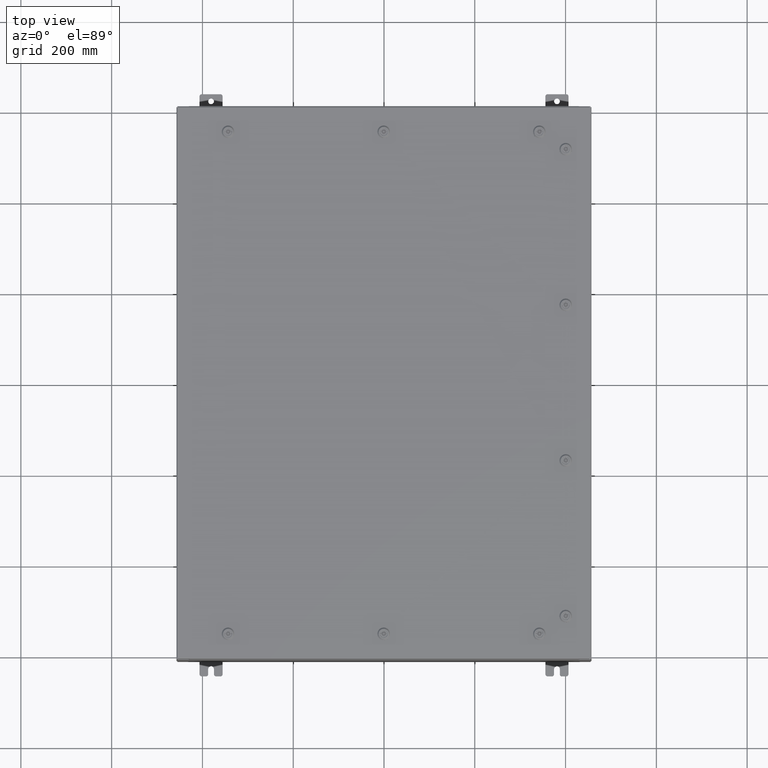
[diagram: clean part render]
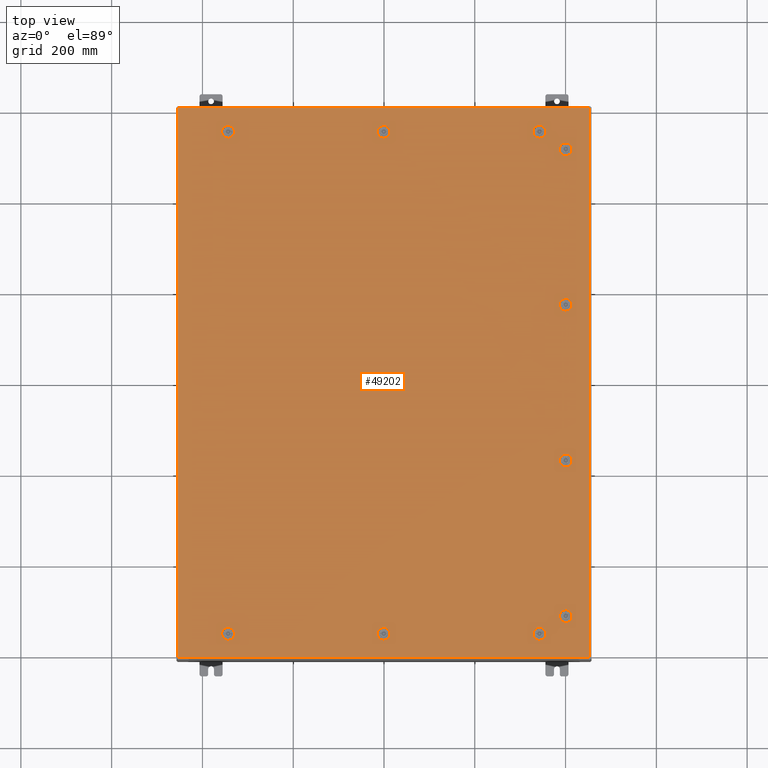
[diagram: same view with one face highlighted and labeled with its STEP entity id]
A machine part, top view. The second image highlights one B-rep face of the part: STEP entity #49202.
In plain terms, the highlighted planar face has unit normal (0, 0, -1).
Its self-contained STEP definition (entity closure, byte-faithful):
#139 = CIRCLE ( 'NONE', #52621, 0.4424999999999983400 ) ;
#185 = AXIS2_PLACEMENT_3D ( 'NONE', #39901, #8101, #45208 ) ;
#509 = DIRECTION ( 'NONE',  ( 1.000000000000000000, 0.0000000000000000000, 0.0000000000000000000 ) ) ;
#716 = CIRCLE ( 'NONE', #51055, 0.4424999999999969000 ) ;
#941 = CARTESIAN_POINT ( 'NONE',  ( 13.69945237526787100, -21.39280000000001200, 0.0000000000000000000 ) ) ;
#1035 = CARTESIAN_POINT ( 'NONE',  ( -17.84979999999999800, -23.84980000000000200, 1.946441695485787500E-015 ) ) ;
#1218 = VERTEX_POINT ( 'NONE', #61041 ) ;
#1228 = DIRECTION ( 'NONE',  ( -6.982962677686266700E-015, -6.982962677686266700E-015, 1.000000000000000000 ) ) ;
#1239 = DIRECTION ( 'NONE',  ( 0.0000000000000000000, 0.0000000000000000000, 1.000000000000000000 ) ) ;
#1246 = VERTEX_POINT ( 'NONE', #8876 ) ;
#1655 = CARTESIAN_POINT ( 'NONE',  ( 13.30054762473210400, -21.39280000000001200, -1.564962406004356200E-013 ) ) ;
#1794 = CARTESIAN_POINT ( 'NONE',  ( -13.49999999999998600, 21.78780000000000400, 0.0000000000000000000 ) ) ;
#1913 = CIRCLE ( 'NONE', #35100, 0.4424999999999983400 ) ;
#1946 = CARTESIAN_POINT ( 'NONE',  ( 15.39280000000002200, -20.05054762473213300, 0.0000000000000000000 ) ) ;
#1964 = ORIENTED_EDGE ( 'NONE', *, *, #7868, .F. ) ;
#2073 = VERTEX_POINT ( 'NONE', #22288 ) ;
#2154 = DIRECTION ( 'NONE',  ( -0.0000000000000000000, -6.982962677686266700E-015, 1.000000000000000000 ) ) ;
#2498 = VERTEX_POINT ( 'NONE', #26019 ) ;
#2573 = FACE_BOUND ( 'NONE', #8135, .T. ) ;
#2579 = CIRCLE ( 'NONE', #4537, 0.4424999999999961700 ) ;
#2624 = VERTEX_POINT ( 'NONE', #3149 ) ;
#2708 = CARTESIAN_POINT ( 'NONE',  ( -17.84979999999998100, 23.84980000000000900, -1.297627796990525000E-015 ) ) ;
#2808 = DIRECTION ( 'NONE',  ( -6.982962677686266700E-015, -6.982962677686266700E-015, 1.000000000000000000 ) ) ;
#3149 = CARTESIAN_POINT ( 'NONE',  ( 16.18280000000001800, -20.05054762473213300, -1.400122257306754800E-013 ) ) ;
#4153 = CARTESIAN_POINT ( 'NONE',  ( 15.39280000000001400, 6.550547624732131700, 0.0000000000000000000 ) ) ;
#4272 = FACE_BOUND ( 'NONE', #63169, .T. ) ;
#4416 = DIRECTION ( 'NONE',  ( 0.0000000000000000000, 0.0000000000000000000, 1.000000000000000000 ) ) ;
#4499 = VECTOR ( 'NONE', #30217, 39.37007874015748100 ) ;
#4537 = AXIS2_PLACEMENT_3D ( 'NONE', #46568, #27211, #34648 ) ;
#4672 = AXIS2_PLACEMENT_3D ( 'NONE', #11074, #48193, #16403 ) ;
#4700 = EDGE_LOOP ( 'NONE', ( #47849, #30620, #43129, #65887 ) ) ;
#4957 = AXIS2_PLACEMENT_3D ( 'NONE', #11133, #48261, #16477 ) ;
#5303 = CARTESIAN_POINT ( 'NONE',  ( 16.18280000000000700, -6.550547624732131700, -4.574222958191090100E-014 ) ) ;
#5309 = VERTEX_POINT ( 'NONE', #40691 ) ;
#5504 = EDGE_LOOP ( 'NONE', ( #7027, #1964, #68101, #35937, #25734 ) ) ;
#5579 = CARTESIAN_POINT ( 'NONE',  ( -0.1994523752678689600, -21.39280000000001200, -2.493734682567286400E-013 ) ) ;
#5650 = EDGE_CURVE ( 'NONE', #50179, #11201, #2579, .T. ) ;
#5758 = ORIENTED_EDGE ( 'NONE', *, *, #28889, .F. ) ;
#5836 = DIRECTION ( 'NONE',  ( 0.0000000000000000000, 0.0000000000000000000, 1.000000000000000000 ) ) ;
#6274 = AXIS2_PLACEMENT_3D ( 'NONE', #37616, #5836, #42937 ) ;
#6297 = CIRCLE ( 'NONE', #53654, 0.4424999999999983400 ) ;
#6640 = ORIENTED_EDGE ( 'NONE', *, *, #12326, .F. ) ;
#6666 = EDGE_CURVE ( 'NONE', #18786, #41251, #139, .T. ) ;
#6931 = EDGE_CURVE ( 'NONE', #43496, #18786, #25022, .T. ) ;
#7027 = ORIENTED_EDGE ( 'NONE', *, *, #65201, .F. ) ;
#7089 = EDGE_LOOP ( 'NONE', ( #48249, #60958, #58047, #24328 ) ) ;
#7113 = DIRECTION ( 'NONE',  ( 1.000000000000000000, 0.0000000000000000000, 0.0000000000000000000 ) ) ;
#7690 = CARTESIAN_POINT ( 'NONE',  ( 16.18280000000000400, -6.949452375267900300, -4.852776656685392100E-014 ) ) ;
#7786 = DIRECTION ( 'NONE',  ( 5.478697338139280000E-015, 1.000000000000000000, 6.982962677686382700E-015 ) ) ;
#7868 = EDGE_CURVE ( 'NONE', #11201, #53735, #37446, .T. ) ;
#7936 = VECTOR ( 'NONE', #41006, 39.37007874015748100 ) ;
#8101 = DIRECTION ( 'NONE',  ( -6.982962677686266700E-015, -6.982962677686266700E-015, 1.000000000000000000 ) ) ;
#8135 = EDGE_LOOP ( 'NONE', ( #54027, #33619, #61500, #64724, #50000 ) ) ;
#8223 = CIRCLE ( 'NONE', #28421, 0.4424999999999961700 ) ;
#8261 = DIRECTION ( 'NONE',  ( -0.0000000000000000000, -6.982962677686266700E-015, 1.000000000000000000 ) ) ;
#8296 = CARTESIAN_POINT ( 'NONE',  ( 15.39280000000002800, -20.44945237526790300, -1.427977627156185600E-013 ) ) ;
#8519 = DIRECTION ( 'NONE',  ( 1.095739467627844000E-014, -1.000000000000000000, -6.982962677686384300E-015 ) ) ;
#8691 = CARTESIAN_POINT ( 'NONE',  ( 13.30054762473209400, 22.18280000000000000, -9.287722765629296100E-014 ) ) ;
#8780 = EDGE_CURVE ( 'NONE', #5309, #59010, #67264, .T. ) ;
#8876 = CARTESIAN_POINT ( 'NONE',  ( 15.39280000000001900, 20.05054762473213300, 0.0000000000000000000 ) ) ;
#8884 = EDGE_CURVE ( 'NONE', #38419, #2624, #49807, .T. ) ;
#8890 = AXIS2_PLACEMENT_3D ( 'NONE', #64110, #32299, #509 ) ;
#9441 = CIRCLE ( 'NONE', #45059, 0.4424999999999983400 ) ;
#9752 = LINE ( 'NONE', #33824, #36327 ) ;
#10256 = DIRECTION ( 'NONE',  ( -5.478697338139280000E-015, 1.000000000000000000, -0.0000000000000000000 ) ) ;
#10920 = EDGE_CURVE ( 'NONE', #59010, #67471, #52139, .T. ) ;
#11010 = VERTEX_POINT ( 'NONE', #63127 ) ;
#11034 = EDGE_CURVE ( 'NONE', #13463, #50179, #22250, .T. ) ;
#11074 = CARTESIAN_POINT ( 'NONE',  ( 13.49999999999998600, 21.78780000000000400, -9.426999614876453700E-014 ) ) ;
#11085 = VERTEX_POINT ( 'NONE', #26211 ) ;
#11133 = CARTESIAN_POINT ( 'NONE',  ( 1.529834876451987200E-014, -21.78780000000000400, -2.521317385144146900E-013 ) ) ;
#11201 = VERTEX_POINT ( 'NONE', #38490 ) ;
#11455 = EDGE_CURVE ( 'NONE', #40536, #59069, #49607, .T. ) ;
#11553 = DIRECTION ( 'NONE',  ( -1.000000000000000000, 0.0000000000000000000, -0.0000000000000000000 ) ) ;
#11755 = EDGE_LOOP ( 'NONE', ( #51738, #58623, #53646, #54742 ) ) ;
#12128 = AXIS2_PLACEMENT_3D ( 'NONE', #32652, #43334, #11553 ) ;
#12234 = AXIS2_PLACEMENT_3D ( 'NONE', #33017, #1239, #38372 ) ;
#12326 = EDGE_CURVE ( 'NONE', #41998, #68625, #19651, .T. ) ;
#12386 = CARTESIAN_POINT ( 'NONE',  ( 1.529834876451987200E-014, -21.78780000000000400, -2.521317385144146900E-013 ) ) ;
#12405 = CIRCLE ( 'NONE', #12234, 0.4424999999999961700 ) ;
#12496 = CIRCLE ( 'NONE', #61349, 0.4424999999999961700 ) ;
#12734 = VECTOR ( 'NONE', #10256, 39.37007874015748100 ) ;
#12749 = DIRECTION ( 'NONE',  ( 1.000000000000000000, -0.0000000000000000000, -0.0000000000000000000 ) ) ;
#12814 = FACE_OUTER_BOUND ( 'NONE', #7089, .T. ) ;
#12834 = LINE ( 'NONE', #26647, #67679 ) ;
#12858 = VERTEX_POINT ( 'NONE', #1035 ) ;
#12917 = DIRECTION ( 'NONE',  ( 1.095739467627835000E-014, -1.000000000000000000, -6.982962677686269100E-015 ) ) ;
#13052 = DIRECTION ( 'NONE',  ( 1.000000000000000000, 1.095739467627832000E-014, 7.785697190085955000E-029 ) ) ;
#13128 = DIRECTION ( 'NONE',  ( 0.0000000000000000000, 1.000000000000000000, 0.0000000000000000000 ) ) ;
#13463 = VERTEX_POINT ( 'NONE', #36931 ) ;
#13817 = EDGE_CURVE ( 'NONE', #50801, #49105, #6297, .T. ) ;
#13846 = CIRCLE ( 'NONE', #48774, 0.4424999999999972800 ) ;
#14117 = EDGE_CURVE ( 'NONE', #1218, #1246, #27840, .T. ) ;
#14322 = CARTESIAN_POINT ( 'NONE',  ( 16.18280000000001500, 20.05054762473213300, 0.0000000000000000000 ) ) ;
#14321 = DIRECTION ( 'NONE',  ( -0.0000000000000000000, -6.982962677686266700E-015, 1.000000000000000000 ) ) ;
#14461 = EDGE_CURVE ( 'NONE', #2498, #17411, #12834, .T. ) ;
#14643 = EDGE_CURVE ( 'NONE', #59473, #60769, #21986, .T. ) ;
#15004 = ORIENTED_EDGE ( 'NONE', *, *, #6931, .F. ) ;
#15054 = VERTEX_POINT ( 'NONE', #45804 ) ;
#15513 = LINE ( 'NONE', #7690, #56177 ) ;
#15707 = EDGE_CURVE ( 'NONE', #19459, #33710, #18591, .T. ) ;
#16350 = VERTEX_POINT ( 'NONE', #8691 ) ;
#16362 = CARTESIAN_POINT ( 'NONE',  ( 13.49999999999998600, 21.78780000000000400, -9.426999614876453700E-014 ) ) ;
#16403 = DIRECTION ( 'NONE',  ( -1.000000000000000000, 0.0000000000000000000, 6.982962677686269100E-015 ) ) ;
#16477 = DIRECTION ( 'NONE',  ( 0.0000000000000000000, 1.000000000000000000, 6.982962677686270700E-015 ) ) ;
#16511 = VECTOR ( 'NONE', #13128, 39.37007874015748100 ) ;
#16706 = FACE_BOUND ( 'NONE', #50046, .T. ) ;
#16873 = CARTESIAN_POINT ( 'NONE',  ( 15.78780000000000800, -6.750000000000014200, -4.713499807438240100E-014 ) ) ;
#17411 = VERTEX_POINT ( 'NONE', #51178 ) ;
#17736 = DIRECTION ( 'NONE',  ( 0.0000000000000000000, 1.000000000000000000, 6.982962677686270700E-015 ) ) ;
#17823 = CIRCLE ( 'NONE', #8890, 0.4424999999999983400 ) ;
#17833 = CARTESIAN_POINT ( 'NONE',  ( 0.4425000000000125500, 21.78780000000000400, 0.0000000000000000000 ) ) ;
#18158 = EDGE_CURVE ( 'NONE', #1246, #33358, #8223, .T. ) ;
#18294 = CARTESIAN_POINT ( 'NONE',  ( 15.39280000000001500, -6.949452375267904700, -4.852776656685395200E-014 ) ) ;
#18360 = FACE_BOUND ( 'NONE', #11755, .T. ) ;
#18591 = LINE ( 'NONE', #35544, #4499 ) ;
#18675 = CARTESIAN_POINT ( 'NONE',  ( 13.69945237526786900, -22.18280000000000400, -1.592272441308647100E-013 ) ) ;
#18786 = VERTEX_POINT ( 'NONE', #18675 ) ;
#19459 = VERTEX_POINT ( 'NONE', #66780 ) ;
#19651 = LINE ( 'NONE', #1655, #62008 ) ;
#19750 = DIRECTION ( 'NONE',  ( 1.000000000000000000, -1.095739467627832000E-014, 6.982962677686152300E-015 ) ) ;
#19815 = ORIENTED_EDGE ( 'NONE', *, *, #46277, .F. ) ;
#20034 = FACE_BOUND ( 'NONE', #4700, .T. ) ;
#20179 = DIRECTION ( 'NONE',  ( -1.000000000000000000, 0.0000000000000000000, 7.785697190086082800E-029 ) ) ;
#20228 = CARTESIAN_POINT ( 'NONE',  ( 15.39280000000002800, -20.44945237526790300, -1.427977627156185100E-013 ) ) ;
#20358 = VECTOR ( 'NONE', #8519, 39.37007874015748100 ) ;
#20573 = CARTESIAN_POINT ( 'NONE',  ( -13.69945237526786900, -22.18280000000000700, 0.0000000000000000000 ) ) ;
#20661 = VERTEX_POINT ( 'NONE', #33928 ) ;
#20853 = CIRCLE ( 'NONE', #4957, 0.4424999999999983400 ) ;
#21004 = DIRECTION ( 'NONE',  ( 1.000000000000000000, -0.0000000000000000000, -0.0000000000000000000 ) ) ;
#21072 = CARTESIAN_POINT ( 'NONE',  ( 1.529834876451987200E-014, 21.78780000000000400, 0.0000000000000000000 ) ) ;
#21134 = ORIENTED_EDGE ( 'NONE', *, *, #24007, .F. ) ;
#21226 = CARTESIAN_POINT ( 'NONE',  ( 1.529834876451987200E-014, 21.78780000000000400, 0.0000000000000000000 ) ) ;
#21661 = ORIENTED_EDGE ( 'NONE', *, *, #57376, .F. ) ;
#21697 = DIRECTION ( 'NONE',  ( -1.000000000000000000, 0.0000000000000000000, 6.982962677686270700E-015 ) ) ;
#21720 = VECTOR ( 'NONE', #19750, 39.37007874015748100 ) ;
#21986 = LINE ( 'NONE', #59352, #36103 ) ;
#22028 = LINE ( 'NONE', #8296, #20358 ) ;
#22195 = DIRECTION ( 'NONE',  ( 0.0000000000000000000, 1.000000000000000000, 6.982962677686269100E-015 ) ) ;
#22207 = DIRECTION ( 'NONE',  ( -1.000000000000000000, 0.0000000000000000000, 7.785697190086061500E-029 ) ) ;
#22250 = LINE ( 'NONE', #52661, #48825 ) ;
#22251 = EDGE_LOOP ( 'NONE', ( #5758, #41558, #59573, #52548 ) ) ;
#22288 = CARTESIAN_POINT ( 'NONE',  ( -13.30054762473210400, -21.39280000000001500, -2.493734682567286900E-013 ) ) ;
#22397 = CARTESIAN_POINT ( 'NONE',  ( -13.49999999999998600, -21.78780000000000800, -2.521317385144146900E-013 ) ) ;
#22621 = EDGE_CURVE ( 'NONE', #63371, #19459, #51936, .T. ) ;
#23334 = AXIS2_PLACEMENT_3D ( 'NONE', #25582, #62734, #30918 ) ;
#23570 = EDGE_LOOP ( 'NONE', ( #35039, #21661, #56363, #48434, #54918 ) ) ;
#23889 = VECTOR ( 'NONE', #46396, 39.37007874015748100 ) ;
#24007 = EDGE_CURVE ( 'NONE', #51397, #50801, #38559, .T. ) ;
#24049 = DIRECTION ( 'NONE',  ( 0.0000000000000000000, -1.000000000000000000, 0.0000000000000000000 ) ) ;
#24113 = EDGE_CURVE ( 'NONE', #51819, #45655, #49333, .T. ) ;
#24137 = ORIENTED_EDGE ( 'NONE', *, *, #28105, .F. ) ;
#24328 = ORIENTED_EDGE ( 'NONE', *, *, #25350, .T. ) ;
#24414 = DIRECTION ( 'NONE',  ( 0.0000000000000000000, 0.0000000000000000000, 1.000000000000000000 ) ) ;
#24534 = EDGE_CURVE ( 'NONE', #2624, #46488, #9441, .T. ) ;
#24900 = LINE ( 'NONE', #18294, #65598 ) ;
#25022 = LINE ( 'NONE', #56851, #21720 ) ;
#25273 = CARTESIAN_POINT ( 'NONE',  ( 16.18280000000000400, -6.949452375267900300, -4.852776656685392100E-014 ) ) ;
#25350 = EDGE_CURVE ( 'NONE', #45655, #12858, #53400, .T. ) ;
#25556 = EDGE_CURVE ( 'NONE', #68029, #5309, #59210, .T. ) ;
#25582 = CARTESIAN_POINT ( 'NONE',  ( -13.49999999999998600, 21.78780000000000400, 0.0000000000000000000 ) ) ;
#25734 = ORIENTED_EDGE ( 'NONE', *, *, #37359, .F. ) ;
#26019 = CARTESIAN_POINT ( 'NONE',  ( -0.1994523752678689600, 21.39280000000001200, 0.0000000000000000000 ) ) ;
#26211 = CARTESIAN_POINT ( 'NONE',  ( -13.69945237526787100, -21.39280000000001500, -2.493734682567286400E-013 ) ) ;
#26413 = DIRECTION ( 'NONE',  ( 1.000000000000000000, 0.0000000000000000000, 0.0000000000000000000 ) ) ;
#26569 = DIRECTION ( 'NONE',  ( 1.000000000000000000, 0.0000000000000000000, 0.0000000000000000000 ) ) ;
#26647 = CARTESIAN_POINT ( 'NONE',  ( 0.1994523752678995500, 21.39280000000001200, 0.0000000000000000000 ) ) ;
#27081 = VECTOR ( 'NONE', #21004, 39.37007874015748100 ) ;
#27211 = DIRECTION ( 'NONE',  ( 6.982962677686266700E-015, -0.0000000000000000000, 1.000000000000000000 ) ) ;
#27329 = PLANE ( 'NONE',  #12128 ) ;
#27399 = CARTESIAN_POINT ( 'NONE',  ( -13.49999999999998600, -21.78780000000000800, -2.521317385144146900E-013 ) ) ;
#27405 = CARTESIAN_POINT ( 'NONE',  ( 0.1994523752679054600, -22.18280000000000000, -2.548900087721007400E-013 ) ) ;
#27599 = DIRECTION ( 'NONE',  ( 1.000000000000000000, 1.095739467627836100E-014, 7.785697190085984100E-029 ) ) ;
#27695 = AXIS2_PLACEMENT_3D ( 'NONE', #12386, #49514, #17736 ) ;
#27732 = DIRECTION ( 'NONE',  ( 0.0000000000000000000, 1.000000000000000000, 6.982962677686270700E-015 ) ) ;
#27743 = CARTESIAN_POINT ( 'NONE',  ( 13.69945237526786900, 21.39280000000001200, -9.566276464123603800E-014 ) ) ;
#27840 = LINE ( 'NONE', #66352, #52750 ) ;
#27929 = CARTESIAN_POINT ( 'NONE',  ( 15.78780000000001800, -20.25000000000001400, -1.414049942231469700E-013 ) ) ;
#28105 = EDGE_CURVE ( 'NONE', #68625, #43496, #60657, .T. ) ;
#28421 = AXIS2_PLACEMENT_3D ( 'NONE', #61710, #29906, #67041 ) ;
#28830 = VERTEX_POINT ( 'NONE', #44482 ) ;
#28889 = EDGE_CURVE ( 'NONE', #59069, #34531, #24900, .T. ) ;
#29537 = AXIS2_PLACEMENT_3D ( 'NONE', #16362, #53483, #21697 ) ;
#29627 = ORIENTED_EDGE ( 'NONE', *, *, #43272, .F. ) ;
#29906 = DIRECTION ( 'NONE',  ( 0.0000000000000000000, 0.0000000000000000000, 1.000000000000000000 ) ) ;
#29970 = ORIENTED_EDGE ( 'NONE', *, *, #52198, .F. ) ;
#30029 = EDGE_CURVE ( 'NONE', #44879, #20661, #53053, .T. ) ;
#30129 = DIRECTION ( 'NONE',  ( -0.0000000000000000000, -6.982962677686266700E-015, 1.000000000000000000 ) ) ;
#30217 = DIRECTION ( 'NONE',  ( -1.000000000000000000, 1.095739467627836100E-014, 0.0000000000000000000 ) ) ;
#30311 = EDGE_CURVE ( 'NONE', #39462, #51819, #32279, .T. ) ;
#30332 = DIRECTION ( 'NONE',  ( -1.095739467627835000E-014, -1.000000000000000000, 0.0000000000000000000 ) ) ;
#30347 = AXIS2_PLACEMENT_3D ( 'NONE', #56192, #24414, #61553 ) ;
#30479 = EDGE_LOOP ( 'NONE', ( #19815, #37371, #62501, #42418 ) ) ;
#30620 = ORIENTED_EDGE ( 'NONE', *, *, #45423, .F. ) ;
#30819 = FACE_BOUND ( 'NONE', #5504, .T. ) ;
#30918 = DIRECTION ( 'NONE',  ( 1.000000000000000000, 0.0000000000000000000, 0.0000000000000000000 ) ) ;
#32171 = VERTEX_POINT ( 'NONE', #48402 ) ;
#32279 = LINE ( 'NONE', #50264, #16511 ) ;
#32299 = DIRECTION ( 'NONE',  ( 0.0000000000000000000, 0.0000000000000000000, 1.000000000000000000 ) ) ;
#32613 = VECTOR ( 'NONE', #12749, 39.37007874015748100 ) ;
#32652 = CARTESIAN_POINT ( 'NONE',  ( 0.0000000000000000000, 0.0000000000000000000, 0.0000000000000000000 ) ) ;
#32742 = DIRECTION ( 'NONE',  ( 0.0000000000000000000, 1.000000000000000000, 6.982962677686270700E-015 ) ) ;
#32999 = CARTESIAN_POINT ( 'NONE',  ( 13.49999999999998600, -21.78780000000000400, -1.578617423656501800E-013 ) ) ;
#33017 = CARTESIAN_POINT ( 'NONE',  ( -13.49999999999998600, 21.78780000000000400, 0.0000000000000000000 ) ) ;
#33211 = DIRECTION ( 'NONE',  ( -1.000000000000000000, -0.0000000000000000000, -6.982962677686265900E-015 ) ) ;
#33261 = DIRECTION ( 'NONE',  ( 0.0000000000000000000, 1.000000000000000000, 6.982962677686235200E-015 ) ) ;
#33358 = VERTEX_POINT ( 'NONE', #14322 ) ;
#33619 = ORIENTED_EDGE ( 'NONE', *, *, #54801, .F. ) ;
#33710 = VERTEX_POINT ( 'NONE', #51610 ) ;
#33824 = CARTESIAN_POINT ( 'NONE',  ( 0.1994523752679067700, -22.18280000000000000, -2.548900087721007400E-013 ) ) ;
#33926 = CARTESIAN_POINT ( 'NONE',  ( 15.78780000000001800, -20.25000000000001400, -1.414049942231469700E-013 ) ) ;
#33928 = CARTESIAN_POINT ( 'NONE',  ( 16.18280000000000700, 6.949452375267900300, 0.0000000000000000000 ) ) ;
#34136 = FACE_BOUND ( 'NONE', #30479, .T. ) ;
#34265 = LINE ( 'NONE', #60335, #32613 ) ;
#34286 = EDGE_CURVE ( 'NONE', #60260, #40536, #15513, .T. ) ;
#34531 = VERTEX_POINT ( 'NONE', #62712 ) ;
#34535 = DIRECTION ( 'NONE',  ( -1.095739467627844000E-014, -1.000000000000000000, 0.0000000000000000000 ) ) ;
#34574 = CARTESIAN_POINT ( 'NONE',  ( 13.49999999999998600, -21.78780000000000400, -1.578617423656501800E-013 ) ) ;
#34648 = DIRECTION ( 'NONE',  ( -1.000000000000000000, 0.0000000000000000000, 6.982962677686269100E-015 ) ) ;
#35039 = ORIENTED_EDGE ( 'NONE', *, *, #63382, .F. ) ;
#35100 = AXIS2_PLACEMENT_3D ( 'NONE', #61936, #30129, #67276 ) ;
#35544 = CARTESIAN_POINT ( 'NONE',  ( 0.1994523752679067700, 22.18280000000000000, 0.0000000000000000000 ) ) ;
#35937 = ORIENTED_EDGE ( 'NONE', *, *, #11034, .F. ) ;
#36103 = VECTOR ( 'NONE', #22207, 39.37007874015748100 ) ;
#36189 = CARTESIAN_POINT ( 'NONE',  ( 15.78780000000001500, 20.25000000000001400, 0.0000000000000000000 ) ) ;
#36267 = AXIS2_PLACEMENT_3D ( 'NONE', #46125, #14321, #51471 ) ;
#36316 = EDGE_CURVE ( 'NONE', #41251, #41998, #63852, .T. ) ;
#36327 = VECTOR ( 'NONE', #27599, 39.37007874015748100 ) ;
#36655 = DIRECTION ( 'NONE',  ( 1.000000000000000000, 0.0000000000000000000, -6.982962677686306200E-015 ) ) ;
#36896 = VECTOR ( 'NONE', #61342, 39.37007874015748100 ) ;
#36931 = CARTESIAN_POINT ( 'NONE',  ( 13.30054762473210200, 21.39280000000001200, -9.287722765629301200E-014 ) ) ;
#37359 = EDGE_CURVE ( 'NONE', #16350, #13463, #63060, .T. ) ;
#37371 = ORIENTED_EDGE ( 'NONE', *, *, #18158, .F. ) ;
#37446 = CIRCLE ( 'NONE', #4672, 0.4424999999999961700 ) ;
#37616 = CARTESIAN_POINT ( 'NONE',  ( 15.78780000000001000, 6.750000000000014200, 0.0000000000000000000 ) ) ;
#37859 = ORIENTED_EDGE ( 'NONE', *, *, #13817, .F. ) ;
#38265 = DIRECTION ( 'NONE',  ( -5.478697338139235000E-015, 1.000000000000000000, -0.0000000000000000000 ) ) ;
#38357 = DIRECTION ( 'NONE',  ( 1.000000000000000000, 0.0000000000000000000, 6.982962677686270700E-015 ) ) ;
#38372 = DIRECTION ( 'NONE',  ( 1.000000000000000000, 0.0000000000000000000, 0.0000000000000000000 ) ) ;
#38419 = VERTEX_POINT ( 'NONE', #39888 ) ;
#38490 = CARTESIAN_POINT ( 'NONE',  ( 13.94249999999998300, 21.78780000000000400, -9.735995713364067600E-014 ) ) ;
#38559 = LINE ( 'NONE', #44829, #40209 ) ;
#38566 = EDGE_CURVE ( 'NONE', #41519, #15054, #51300, .T. ) ;
#38902 = DIRECTION ( 'NONE',  ( 0.0000000000000000000, 0.0000000000000000000, 1.000000000000000000 ) ) ;
#39255 = DIRECTION ( 'NONE',  ( 0.0000000000000000000, 1.000000000000000000, 6.982962677686235200E-015 ) ) ;
#39462 = VERTEX_POINT ( 'NONE', #60911 ) ;
#39478 = DIRECTION ( 'NONE',  ( 5.478697338139235000E-015, 1.000000000000000000, 6.982962677686265900E-015 ) ) ;
#39715 = ORIENTED_EDGE ( 'NONE', *, *, #68483, .F. ) ;
#39888 = CARTESIAN_POINT ( 'NONE',  ( 16.18280000000001500, -20.44945237526789600, -1.427977627156185100E-013 ) ) ;
#39901 = CARTESIAN_POINT ( 'NONE',  ( 13.49999999999998600, -21.78780000000000400, -1.578617423656501800E-013 ) ) ;
#39921 = DIRECTION ( 'NONE',  ( 1.000000000000000000, 0.0000000000000000000, 6.982962677686304600E-015 ) ) ;
#40061 = CARTESIAN_POINT ( 'NONE',  ( 15.78780000000000800, -6.750000000000014200, -4.713499807438240100E-014 ) ) ;
#40209 = VECTOR ( 'NONE', #13052, 39.37007874015748100 ) ;
#40536 = VERTEX_POINT ( 'NONE', #5303 ) ;
#40691 = CARTESIAN_POINT ( 'NONE',  ( -13.05749999999998900, 21.78780000000000400, 0.0000000000000000000 ) ) ;
#40695 = EDGE_CURVE ( 'NONE', #34531, #60260, #63672, .T. ) ;
#40785 = CARTESIAN_POINT ( 'NONE',  ( 15.39280000000001900, 6.949452375267904700, 0.0000000000000000000 ) ) ;
#41006 = DIRECTION ( 'NONE',  ( -1.000000000000000000, -1.095739467627832000E-014, 6.982962677686228800E-015 ) ) ;
#41184 = ORIENTED_EDGE ( 'NONE', *, *, #36316, .F. ) ;
#41185 = CARTESIAN_POINT ( 'NONE',  ( -13.30054762473210200, 21.39280000000001200, 0.0000000000000000000 ) ) ;
#41251 = VERTEX_POINT ( 'NONE', #46531 ) ;
#41519 = VERTEX_POINT ( 'NONE', #27405 ) ;
#41529 = DIRECTION ( 'NONE',  ( 1.000000000000000000, 0.0000000000000000000, 0.0000000000000000000 ) ) ;
#41558 = ORIENTED_EDGE ( 'NONE', *, *, #11455, .F. ) ;
#41800 = EDGE_LOOP ( 'NONE', ( #21134, #39715, #47609, #53040, #37859 ) ) ;
#41998 = VERTEX_POINT ( 'NONE', #941 ) ;
#42126 = CARTESIAN_POINT ( 'NONE',  ( -13.30054762473210200, 21.39280000000001200, 0.0000000000000000000 ) ) ;
#42174 = VECTOR ( 'NONE', #30332, 39.37007874015748100 ) ;
#42418 = ORIENTED_EDGE ( 'NONE', *, *, #55924, .F. ) ;
#42569 = AXIS2_PLACEMENT_3D ( 'NONE', #40061, #8261, #45376 ) ;
#42655 = DIRECTION ( 'NONE',  ( 1.000000000000000000, -0.0000000000000000000, -0.0000000000000000000 ) ) ;
#42937 = DIRECTION ( 'NONE',  ( 1.000000000000000000, 0.0000000000000000000, 0.0000000000000000000 ) ) ;
#43129 = ORIENTED_EDGE ( 'NONE', *, *, #61364, .F. ) ;
#43272 = EDGE_CURVE ( 'NONE', #11010, #68029, #55273, .T. ) ;
#43315 = CARTESIAN_POINT ( 'NONE',  ( 13.30054762473209500, -22.18280000000000000, -1.620127811158077400E-013 ) ) ;
#43334 = DIRECTION ( 'NONE',  ( 0.0000000000000000000, 0.0000000000000000000, -1.000000000000000000 ) ) ;
#43496 = VERTEX_POINT ( 'NONE', #43315 ) ;
#43817 = LINE ( 'NONE', #40785, #42174 ) ;
#43822 = CARTESIAN_POINT ( 'NONE',  ( 13.69945237526786700, 22.18280000000000400, 0.0000000000000000000 ) ) ;
#44482 = CARTESIAN_POINT ( 'NONE',  ( -0.1994523752678657400, -22.18280000000000700, 0.0000000000000000000 ) ) ;
#44730 = CIRCLE ( 'NONE', #68174, 0.4424999999999983400 ) ;
#44829 = CARTESIAN_POINT ( 'NONE',  ( -13.30054762473209500, -22.18280000000000400, -2.548900087721007400E-013 ) ) ;
#44879 = VERTEX_POINT ( 'NONE', #49286 ) ;
#44888 = FACE_BOUND ( 'NONE', #23570, .T. ) ;
#45059 = AXIS2_PLACEMENT_3D ( 'NONE', #27929, #65067, #33261 ) ;
#45208 = DIRECTION ( 'NONE',  ( 1.000000000000000000, 0.0000000000000000000, 6.982962677686270700E-015 ) ) ;
#45376 = DIRECTION ( 'NONE',  ( 0.0000000000000000000, 1.000000000000000000, 6.982962677686252500E-015 ) ) ;
#45423 = EDGE_CURVE ( 'NONE', #66500, #44879, #17823, .T. ) ;
#45655 = VERTEX_POINT ( 'NONE', #58359 ) ;
#45804 = CARTESIAN_POINT ( 'NONE',  ( 0.4425000000000125500, -21.78780000000000400, -2.521317385144146900E-013 ) ) ;
#46125 = CARTESIAN_POINT ( 'NONE',  ( 1.529834876451987200E-014, -21.78780000000000400, -2.521317385144146900E-013 ) ) ;
#46277 = EDGE_CURVE ( 'NONE', #33358, #64569, #56744, .T. ) ;
#46396 = DIRECTION ( 'NONE',  ( -1.000000000000000000, 1.095739467627832000E-014, 0.0000000000000000000 ) ) ;
#46479 = CARTESIAN_POINT ( 'NONE',  ( -13.69945237526786700, 22.18280000000000400, 0.0000000000000000000 ) ) ;
#46488 = VERTEX_POINT ( 'NONE', #1946 ) ;
#46531 = CARTESIAN_POINT ( 'NONE',  ( 13.94249999999998500, -21.78780000000000400, -1.547717813807740000E-013 ) ) ;
#46568 = CARTESIAN_POINT ( 'NONE',  ( 13.49999999999998600, 21.78780000000000400, -9.426999614876453700E-014 ) ) ;
#46613 = CARTESIAN_POINT ( 'NONE',  ( -13.30054762473210400, -21.39280000000001500, -2.493734682567286900E-013 ) ) ;
#47222 = VECTOR ( 'NONE', #20179, 39.37007874015748100 ) ;
#47342 = CARTESIAN_POINT ( 'NONE',  ( 16.18280000000001100, 20.44945237526789600, 0.0000000000000000000 ) ) ;
#47609 = ORIENTED_EDGE ( 'NONE', *, *, #60307, .F. ) ;
#47849 = ORIENTED_EDGE ( 'NONE', *, *, #30029, .F. ) ;
#48157 = VECTOR ( 'NONE', #7786, 39.37007874015748100 ) ;
#48193 = DIRECTION ( 'NONE',  ( 6.982962677686266700E-015, -0.0000000000000000000, 1.000000000000000000 ) ) ;
#48249 = ORIENTED_EDGE ( 'NONE', *, *, #68814, .T. ) ;
#48261 = DIRECTION ( 'NONE',  ( -0.0000000000000000000, -6.982962677686266700E-015, 1.000000000000000000 ) ) ;
#48402 = CARTESIAN_POINT ( 'NONE',  ( 15.39280000000001900, 6.949452375267904700, 0.0000000000000000000 ) ) ;
#48434 = ORIENTED_EDGE ( 'NONE', *, *, #59998, .F. ) ;
#48774 = AXIS2_PLACEMENT_3D ( 'NONE', #21072, #58194, #26413 ) ;
#48825 = VECTOR ( 'NONE', #36655, 39.37007874015748100 ) ;
#48868 = CIRCLE ( 'NONE', #53312, 0.4424999999999983400 ) ;
#48924 = CARTESIAN_POINT ( 'NONE',  ( 16.18280000000000700, 6.949452375267900300, 0.0000000000000000000 ) ) ;
#49105 = VERTEX_POINT ( 'NONE', #53083 ) ;
#49202 = ADVANCED_FACE ( 'NONE', ( #18360, #60699, #34136, #20034, #4272, #59053, #44888, #30819, #16706, #2573, #12814 ), #27329, .F. ) ;
#49286 = CARTESIAN_POINT ( 'NONE',  ( 16.18280000000000700, 6.550547624732131700, 0.0000000000000000000 ) ) ;
#49333 = LINE ( 'NONE', #50641, #36896 ) ;
#49514 = DIRECTION ( 'NONE',  ( -0.0000000000000000000, -6.982962677686266700E-015, 1.000000000000000000 ) ) ;
#49607 = CIRCLE ( 'NONE', #42569, 0.4424999999999983400 ) ;
#49654 = AXIS2_PLACEMENT_3D ( 'NONE', #34574, #2808, #39921 ) ;
#49807 = LINE ( 'NONE', #60694, #48157 ) ;
#50000 = ORIENTED_EDGE ( 'NONE', *, *, #63714, .F. ) ;
#50046 = EDGE_LOOP ( 'NONE', ( #29627, #29970, #56351, #54445, #67873 ) ) ;
#50179 = VERTEX_POINT ( 'NONE', #27743 ) ;
#50264 = CARTESIAN_POINT ( 'NONE',  ( 17.84980000000000200, -23.84980000000000200, -2.048885995248197400E-016 ) ) ;
#50493 = VERTEX_POINT ( 'NONE', #20228 ) ;
#50641 = CARTESIAN_POINT ( 'NONE',  ( 17.84980000000000200, 23.84980000000000900, 1.946441695485787500E-015 ) ) ;
#50659 = CARTESIAN_POINT ( 'NONE',  ( 17.84980000000000200, 23.84980000000000900, 1.946441695485787500E-015 ) ) ;
#50801 = VERTEX_POINT ( 'NONE', #62916 ) ;
#51055 = AXIS2_PLACEMENT_3D ( 'NONE', #21226, #58344, #26569 ) ;
#51178 = CARTESIAN_POINT ( 'NONE',  ( 0.1994523752678995500, 21.39280000000001200, 0.0000000000000000000 ) ) ;
#51300 = CIRCLE ( 'NONE', #36267, 0.4424999999999983400 ) ;
#51397 = VERTEX_POINT ( 'NONE', #20573 ) ;
#51471 = DIRECTION ( 'NONE',  ( 0.0000000000000000000, 1.000000000000000000, 6.982962677686270700E-015 ) ) ;
#51610 = CARTESIAN_POINT ( 'NONE',  ( -0.1994523752678657400, 22.18280000000000400, 0.0000000000000000000 ) ) ;
#51738 = ORIENTED_EDGE ( 'NONE', *, *, #66237, .F. ) ;
#51802 = AXIS2_PLACEMENT_3D ( 'NONE', #1794, #38902, #7113 ) ;
#51819 = VERTEX_POINT ( 'NONE', #50659 ) ;
#51936 = CIRCLE ( 'NONE', #30347, 0.4424999999999972800 ) ;
#51974 = CARTESIAN_POINT ( 'NONE',  ( -13.30054762473209400, 22.18280000000000000, 0.0000000000000000000 ) ) ;
#52139 = LINE ( 'NONE', #51974, #23889 ) ;
#52198 = EDGE_CURVE ( 'NONE', #67471, #11010, #12405, .T. ) ;
#52548 = ORIENTED_EDGE ( 'NONE', *, *, #40695, .F. ) ;
#52621 = AXIS2_PLACEMENT_3D ( 'NONE', #32999, #1228, #38357 ) ;
#52661 = CARTESIAN_POINT ( 'NONE',  ( 13.30054762473210200, 21.39280000000001200, -9.287722765629301200E-014 ) ) ;
#52750 = VECTOR ( 'NONE', #34535, 39.37007874015748100 ) ;
#52937 = CARTESIAN_POINT ( 'NONE',  ( 16.18280000000001100, 20.44945237526789600, 0.0000000000000000000 ) ) ;
#53040 = ORIENTED_EDGE ( 'NONE', *, *, #59897, .F. ) ;
#53053 = LINE ( 'NONE', #48924, #65506 ) ;
#53083 = CARTESIAN_POINT ( 'NONE',  ( -13.05749999999999000, -21.78780000000000800, -2.521317385144146900E-013 ) ) ;
#53312 = AXIS2_PLACEMENT_3D ( 'NONE', #33926, #2154, #39255 ) ;
#53400 = LINE ( 'NONE', #2708, #56698 ) ;
#53483 = DIRECTION ( 'NONE',  ( 6.982962677686266700E-015, -0.0000000000000000000, 1.000000000000000000 ) ) ;
#53646 = ORIENTED_EDGE ( 'NONE', *, *, #8884, .F. ) ;
#53654 = AXIS2_PLACEMENT_3D ( 'NONE', #27399, #64552, #32742 ) ;
#53735 = VERTEX_POINT ( 'NONE', #43822 ) ;
#53870 = CIRCLE ( 'NONE', #27695, 0.4424999999999983400 ) ;
#53979 = DIRECTION ( 'NONE',  ( -0.0000000000000000000, -6.982962677686266700E-015, 1.000000000000000000 ) ) ;
#54027 = ORIENTED_EDGE ( 'NONE', *, *, #14461, .F. ) ;
#54445 = ORIENTED_EDGE ( 'NONE', *, *, #8780, .F. ) ;
#54742 = ORIENTED_EDGE ( 'NONE', *, *, #55098, .F. ) ;
#54801 = EDGE_CURVE ( 'NONE', #33710, #2498, #716, .T. ) ;
#54918 = ORIENTED_EDGE ( 'NONE', *, *, #38566, .F. ) ;
#55098 = EDGE_CURVE ( 'NONE', #50493, #38419, #48868, .T. ) ;
#55273 = LINE ( 'NONE', #42126, #27081 ) ;
#55721 = CIRCLE ( 'NONE', #6274, 0.4424999999999983400 ) ;
#55924 = EDGE_CURVE ( 'NONE', #64569, #1218, #12496, .T. ) ;
#56177 = VECTOR ( 'NONE', #39478, 39.37007874015748100 ) ;
#56192 = CARTESIAN_POINT ( 'NONE',  ( 1.529834876451987200E-014, 21.78780000000000400, 0.0000000000000000000 ) ) ;
#56351 = ORIENTED_EDGE ( 'NONE', *, *, #10920, .F. ) ;
#56363 = ORIENTED_EDGE ( 'NONE', *, *, #14643, .F. ) ;
#56698 = VECTOR ( 'NONE', #24049, 39.37007874015748100 ) ;
#56744 = LINE ( 'NONE', #52937, #12734 ) ;
#56851 = CARTESIAN_POINT ( 'NONE',  ( 13.30054762473209500, -22.18280000000000000, -1.620127811158077400E-013 ) ) ;
#56945 = EDGE_CURVE ( 'NONE', #20661, #32171, #55721, .T. ) ;
#57376 = EDGE_CURVE ( 'NONE', #60769, #28830, #20853, .T. ) ;
#58047 = ORIENTED_EDGE ( 'NONE', *, *, #24113, .T. ) ;
#58105 = AXIS2_PLACEMENT_3D ( 'NONE', #16873, #53979, #22195 ) ;
#58194 = DIRECTION ( 'NONE',  ( 0.0000000000000000000, 0.0000000000000000000, 1.000000000000000000 ) ) ;
#58344 = DIRECTION ( 'NONE',  ( 0.0000000000000000000, 0.0000000000000000000, 1.000000000000000000 ) ) ;
#58359 = CARTESIAN_POINT ( 'NONE',  ( -17.84979999999998100, 23.84980000000000900, -1.297627796990525000E-015 ) ) ;
#58623 = ORIENTED_EDGE ( 'NONE', *, *, #24534, .F. ) ;
#59010 = VERTEX_POINT ( 'NONE', #63159 ) ;
#59053 = FACE_BOUND ( 'NONE', #41800, .T. ) ;
#59069 = VERTEX_POINT ( 'NONE', #63390 ) ;
#59210 = CIRCLE ( 'NONE', #23334, 0.4424999999999983400 ) ;
#59352 = CARTESIAN_POINT ( 'NONE',  ( 0.1994523752678995500, -21.39280000000001200, -2.493734682567286900E-013 ) ) ;
#59473 = VERTEX_POINT ( 'NONE', #66991 ) ;
#59529 = DIRECTION ( 'NONE',  ( -0.0000000000000000000, -6.982962677686266700E-015, 1.000000000000000000 ) ) ;
#59573 = ORIENTED_EDGE ( 'NONE', *, *, #34286, .F. ) ;
#59897 = EDGE_CURVE ( 'NONE', #49105, #2073, #44730, .T. ) ;
#59998 = EDGE_CURVE ( 'NONE', #15054, #59473, #53870, .T. ) ;
#60260 = VERTEX_POINT ( 'NONE', #25273 ) ;
#60307 = EDGE_CURVE ( 'NONE', #2073, #11085, #63028, .T. ) ;
#60335 = CARTESIAN_POINT ( 'NONE',  ( -17.84979999999999800, -23.84980000000000200, 1.946441695485787500E-015 ) ) ;
#60657 = CIRCLE ( 'NONE', #49654, 0.4424999999999961700 ) ;
#60694 = CARTESIAN_POINT ( 'NONE',  ( 16.18280000000001500, -20.44945237526789600, -1.427977627156185100E-013 ) ) ;
#60699 = FACE_BOUND ( 'NONE', #22251, .T. ) ;
#60769 = VERTEX_POINT ( 'NONE', #5579 ) ;
#60911 = CARTESIAN_POINT ( 'NONE',  ( 17.84980000000000200, -23.84980000000000200, -2.048885995248197400E-016 ) ) ;
#60958 = ORIENTED_EDGE ( 'NONE', *, *, #30311, .T. ) ;
#61041 = CARTESIAN_POINT ( 'NONE',  ( 15.39280000000002200, 20.44945237526790300, 0.0000000000000000000 ) ) ;
#61342 = DIRECTION ( 'NONE',  ( -1.000000000000000000, -0.0000000000000000000, -0.0000000000000000000 ) ) ;
#61349 = AXIS2_PLACEMENT_3D ( 'NONE', #36189, #4416, #41529 ) ;
#61364 = EDGE_CURVE ( 'NONE', #32171, #66500, #43817, .T. ) ;
#61500 = ORIENTED_EDGE ( 'NONE', *, *, #15707, .F. ) ;
#61553 = DIRECTION ( 'NONE',  ( 1.000000000000000000, 0.0000000000000000000, 0.0000000000000000000 ) ) ;
#61710 = CARTESIAN_POINT ( 'NONE',  ( 15.78780000000001500, 20.25000000000001400, 0.0000000000000000000 ) ) ;
#61936 = CARTESIAN_POINT ( 'NONE',  ( -13.49999999999998600, -21.78780000000000800, -2.521317385144146900E-013 ) ) ;
#62008 = VECTOR ( 'NONE', #33211, 39.37007874015748100 ) ;
#62501 = ORIENTED_EDGE ( 'NONE', *, *, #14117, .F. ) ;
#62547 = ORIENTED_EDGE ( 'NONE', *, *, #6666, .F. ) ;
#62640 = CARTESIAN_POINT ( 'NONE',  ( 13.30054762473210400, -21.39280000000001200, -1.564962406004356200E-013 ) ) ;
#62712 = CARTESIAN_POINT ( 'NONE',  ( 15.39280000000001500, -6.949452375267905600, -4.852776656685395900E-014 ) ) ;
#62734 = DIRECTION ( 'NONE',  ( 0.0000000000000000000, 0.0000000000000000000, 1.000000000000000000 ) ) ;
#62795 = LINE ( 'NONE', #67478, #7936 ) ;
#62916 = CARTESIAN_POINT ( 'NONE',  ( -13.30054762473209500, -22.18280000000000400, -2.548900087721007400E-013 ) ) ;
#63028 = LINE ( 'NONE', #46613, #47222 ) ;
#63060 = CIRCLE ( 'NONE', #29537, 0.4424999999999983400 ) ;
#63127 = CARTESIAN_POINT ( 'NONE',  ( -13.69945237526786900, 21.39280000000001200, 0.0000000000000000000 ) ) ;
#63159 = CARTESIAN_POINT ( 'NONE',  ( -13.30054762473209400, 22.18280000000000000, 0.0000000000000000000 ) ) ;
#63169 = EDGE_LOOP ( 'NONE', ( #6640, #41184, #62547, #15004, #24137 ) ) ;
#63371 = VERTEX_POINT ( 'NONE', #17833 ) ;
#63382 = EDGE_CURVE ( 'NONE', #28830, #41519, #9752, .T. ) ;
#63390 = CARTESIAN_POINT ( 'NONE',  ( 15.39280000000001200, -6.550547624732131700, 0.0000000000000000000 ) ) ;
#63672 = CIRCLE ( 'NONE', #58105, 0.4424999999999972800 ) ;
#63714 = EDGE_CURVE ( 'NONE', #17411, #63371, #13846, .T. ) ;
#63852 = CIRCLE ( 'NONE', #185, 0.4424999999999983400 ) ;
#64110 = CARTESIAN_POINT ( 'NONE',  ( 15.78780000000001000, 6.750000000000014200, 0.0000000000000000000 ) ) ;
#64552 = DIRECTION ( 'NONE',  ( -0.0000000000000000000, -6.982962677686266700E-015, 1.000000000000000000 ) ) ;
#64569 = VERTEX_POINT ( 'NONE', #47342 ) ;
#64724 = ORIENTED_EDGE ( 'NONE', *, *, #22621, .F. ) ;
#65067 = DIRECTION ( 'NONE',  ( -0.0000000000000000000, -6.982962677686266700E-015, 1.000000000000000000 ) ) ;
#65201 = EDGE_CURVE ( 'NONE', #53735, #16350, #62795, .T. ) ;
#65506 = VECTOR ( 'NONE', #38265, 39.37007874015748100 ) ;
#65598 = VECTOR ( 'NONE', #12917, 39.37007874015748100 ) ;
#65887 = ORIENTED_EDGE ( 'NONE', *, *, #56945, .F. ) ;
#66237 = EDGE_CURVE ( 'NONE', #46488, #50493, #22028, .T. ) ;
#66352 = CARTESIAN_POINT ( 'NONE',  ( 15.39280000000002200, 20.44945237526790300, 0.0000000000000000000 ) ) ;
#66500 = VERTEX_POINT ( 'NONE', #4153 ) ;
#66780 = CARTESIAN_POINT ( 'NONE',  ( 0.1994523752679054600, 22.18280000000000000, 0.0000000000000000000 ) ) ;
#66991 = CARTESIAN_POINT ( 'NONE',  ( 0.1994523752678995500, -21.39280000000001200, -2.493734682567286900E-013 ) ) ;
#67041 = DIRECTION ( 'NONE',  ( 1.000000000000000000, 0.0000000000000000000, 0.0000000000000000000 ) ) ;
#67264 = CIRCLE ( 'NONE', #51802, 0.4424999999999983400 ) ;
#67276 = DIRECTION ( 'NONE',  ( 0.0000000000000000000, 1.000000000000000000, 6.982962677686270700E-015 ) ) ;
#67471 = VERTEX_POINT ( 'NONE', #46479 ) ;
#67478 = CARTESIAN_POINT ( 'NONE',  ( 13.30054762473209400, 22.18280000000000000, -9.287722765629296100E-014 ) ) ;
#67679 = VECTOR ( 'NONE', #42655, 39.37007874015748100 ) ;
#67873 = ORIENTED_EDGE ( 'NONE', *, *, #25556, .F. ) ;
#68029 = VERTEX_POINT ( 'NONE', #41185 ) ;
#68101 = ORIENTED_EDGE ( 'NONE', *, *, #5650, .F. ) ;
#68174 = AXIS2_PLACEMENT_3D ( 'NONE', #22397, #59529, #27732 ) ;
#68483 = EDGE_CURVE ( 'NONE', #11085, #51397, #1913, .T. ) ;
#68625 = VERTEX_POINT ( 'NONE', #62640 ) ;
#68814 = EDGE_CURVE ( 'NONE', #12858, #39462, #34265, .T. ) ;